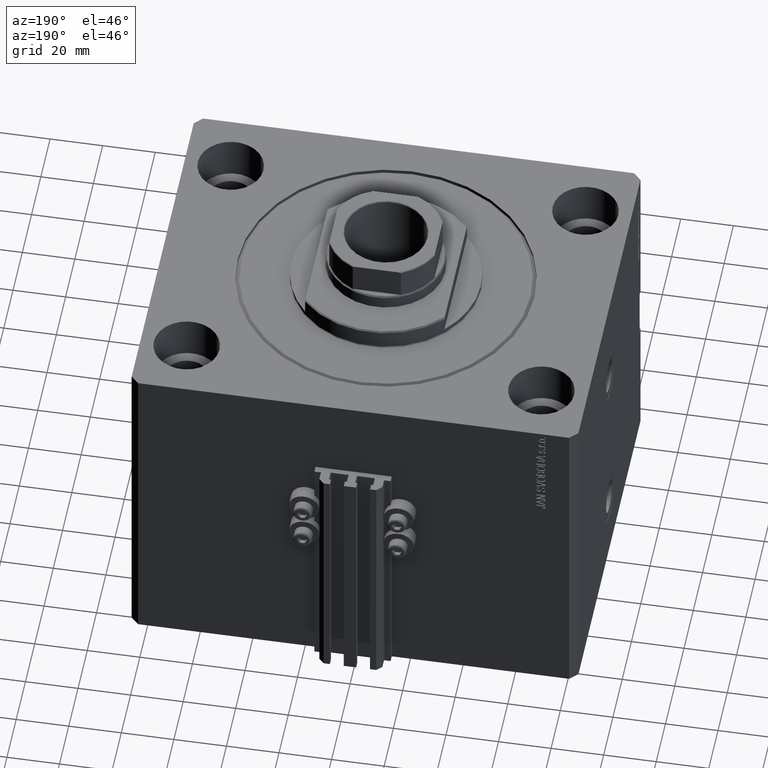
[diagram: clean part render]
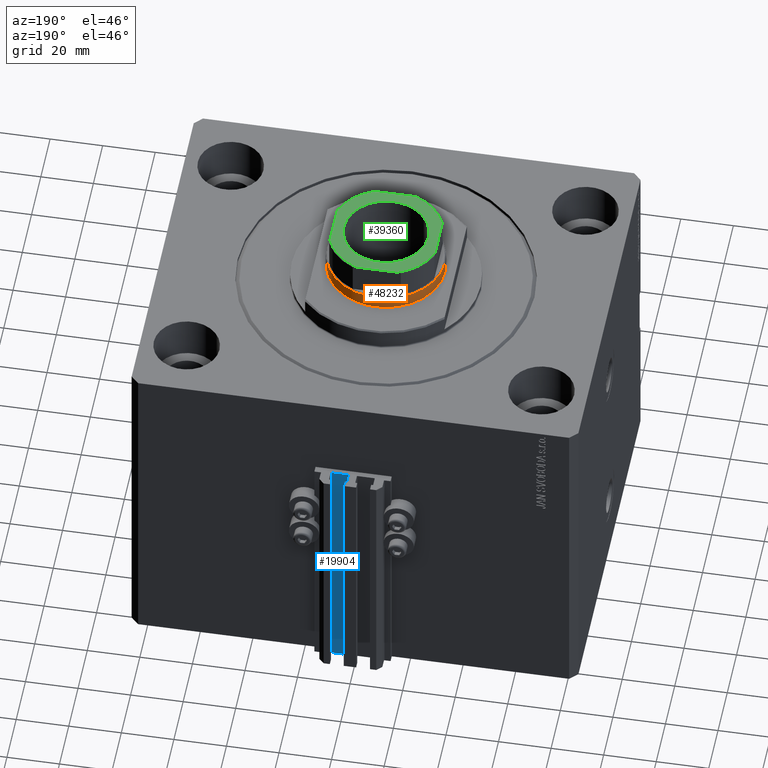
[diagram: same view with three faces highlighted in distinct colors, each labeled with its STEP entity id]
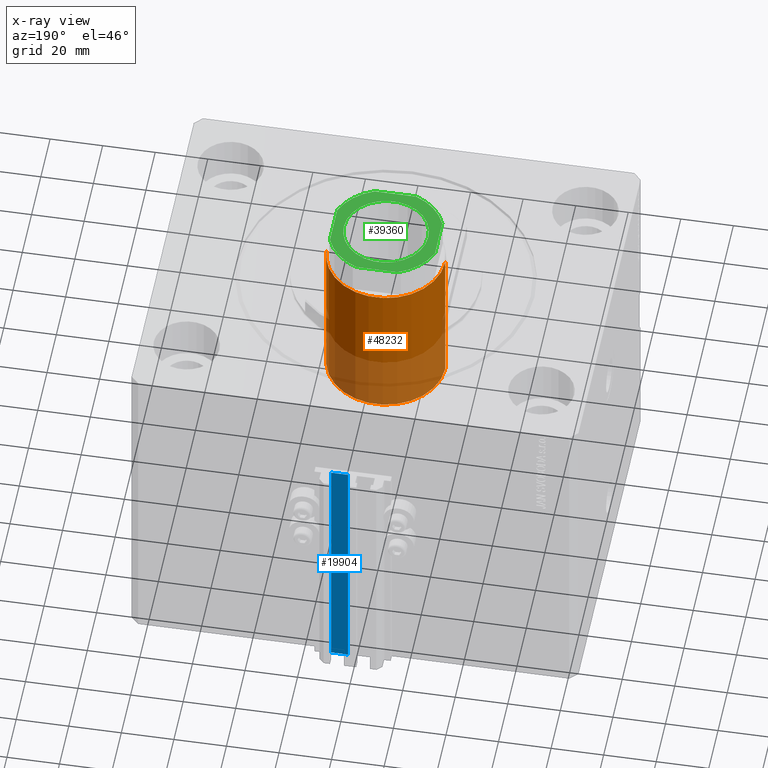
[diagram: x-ray of the same camera — body ghosted, the three highlighted faces saturated]
A machine part, auxiliary view with three faces highlighted in distinct colors.
The next image is the same camera in x-ray (body ghosted, the three faces saturated) — at least one of them is partly hidden behind the body in this view.
Their STEP definitions:

[orange] entity #48232 — the highlighted cylindrical surface (partial cylindrical patch) has radius 22.5 mm, axis along (-0, -0, -1).
#2390 = CARTESIAN_POINT ( 'NONE',  ( 0.000000000000000000, 0.000000000000000000, 114.1000000000000085 ) ) ;
#2541 = CARTESIAN_POINT ( 'NONE',  ( 22.50000000000000355, 2.755455298081544383E-15, 113.6000000000001222 ) ) ;
#3305 = EDGE_CURVE ( 'NONE', #17472, #37091, #46694, .T. ) ;
#5147 = DIRECTION ( 'NONE',  ( 1.000000000000000000, 0.000000000000000000, 0.000000000000000000 ) ) ;
#6538 = DIRECTION ( 'NONE',  ( 0.000000000000000000, 0.000000000000000000, -1.000000000000000000 ) ) ;
#6735 = CARTESIAN_POINT ( 'NONE',  ( -22.50000000000000355, 0.000000000000000000, 114.1000000000000085 ) ) ;
#7206 = LINE ( 'NONE', #6735, #37545 ) ;
#9996 = EDGE_LOOP ( 'NONE', ( #24044, #28781, #40655, #35609 ) ) ;
#12218 = VERTEX_POINT ( 'NONE', #42790 ) ;
#12947 = DIRECTION ( 'NONE',  ( -1.000000000000000000, 0.000000000000000000, 0.000000000000000000 ) ) ;
#13688 = AXIS2_PLACEMENT_3D ( 'NONE', #35682, #6538, #43510 ) ;
#13841 = DIRECTION ( 'NONE',  ( -0.000000000000000000, -0.000000000000000000, -1.000000000000000000 ) ) ;
#16099 = CIRCLE ( 'NONE', #22309, 22.50000000000000355 ) ;
#17174 = EDGE_CURVE ( 'NONE', #12218, #17472, #17565, .T. ) ;
#17472 = VERTEX_POINT ( 'NONE', #2541 ) ;
#17565 = CIRCLE ( 'NONE', #13688, 22.50000000000000355 ) ;
#22309 = AXIS2_PLACEMENT_3D ( 'NONE', #31839, #46053, #5147 ) ;
#22980 = EDGE_CURVE ( 'NONE', #37091, #34509, #16099, .T. ) ;
#24044 = ORIENTED_EDGE ( 'NONE', *, *, #17174, .T. ) ;
#24714 = AXIS2_PLACEMENT_3D ( 'NONE', #2390, #46487, #12947 ) ;
#28111 = FACE_OUTER_BOUND ( 'NONE', #9996, .T. ) ;
#28781 = ORIENTED_EDGE ( 'NONE', *, *, #3305, .T. ) ;
#28806 = CARTESIAN_POINT ( 'NONE',  ( 22.50000000000000355, 2.755455298081544383E-15, 114.1000000000000085 ) ) ;
#31839 = CARTESIAN_POINT ( 'NONE',  ( 0.000000000000000000, 0.000000000000000000, 56.10000000000000142 ) ) ;
#33778 = EDGE_CURVE ( 'NONE', #12218, #34509, #7206, .T. ) ;
#34509 = VERTEX_POINT ( 'NONE', #47137 ) ;
#35609 = ORIENTED_EDGE ( 'NONE', *, *, #33778, .F. ) ;
#35682 = CARTESIAN_POINT ( 'NONE',  ( 0.000000000000000000, 0.000000000000000000, 113.6000000000001222 ) ) ;
#35974 = CARTESIAN_POINT ( 'NONE',  ( 22.50000000000000355, 2.755455298081544383E-15, 56.10000000000000142 ) ) ;
#37091 = VERTEX_POINT ( 'NONE', #35974 ) ;
#37545 = VECTOR ( 'NONE', #13841, 1000.000000000000000 ) ;
#38898 = CYLINDRICAL_SURFACE ( 'NONE', #24714, 22.50000000000000355 ) ;
#40655 = ORIENTED_EDGE ( 'NONE', *, *, #22980, .T. ) ;
#42790 = CARTESIAN_POINT ( 'NONE',  ( -22.50000000000000355, 0.000000000000000000, 113.6000000000001222 ) ) ;
#43510 = DIRECTION ( 'NONE',  ( 1.000000000000000000, 0.000000000000000000, 0.000000000000000000 ) ) ;
#43741 = DIRECTION ( 'NONE',  ( -0.000000000000000000, -0.000000000000000000, -1.000000000000000000 ) ) ;
#46053 = DIRECTION ( 'NONE',  ( 0.000000000000000000, 0.000000000000000000, 1.000000000000000000 ) ) ;
#46487 = DIRECTION ( 'NONE',  ( -0.000000000000000000, -0.000000000000000000, -1.000000000000000000 ) ) ;
#46694 = LINE ( 'NONE', #28806, #46996 ) ;
#46996 = VECTOR ( 'NONE', #43741, 1000.000000000000000 ) ;
#47137 = CARTESIAN_POINT ( 'NONE',  ( -22.50000000000000355, 0.000000000000000000, 56.10000000000000142 ) ) ;
#48232 = ADVANCED_FACE ( 'NONE', ( #28111 ), #38898, .T. ) ;

[blue] entity #19904 — the highlighted planar face has unit normal (0, 1, 0).
#373 = DIRECTION ( 'NONE',  ( -1.000000000000000000, 0.000000000000000000, 0.000000000000000000 ) ) ;
#1296 = VERTEX_POINT ( 'NONE', #34065 ) ;
#1307 = ORIENTED_EDGE ( 'NONE', *, *, #21773, .F. ) ;
#2293 = EDGE_CURVE ( 'NONE', #42415, #23724, #43188, .T. ) ;
#4054 = LINE ( 'NONE', #19002, #40953 ) ;
#4790 = VERTEX_POINT ( 'NONE', #27479 ) ;
#5073 = VECTOR ( 'NONE', #18621, 1000.000000000000000 ) ;
#6889 = LINE ( 'NONE', #21813, #5073 ) ;
#7096 = EDGE_CURVE ( 'NONE', #4790, #23724, #47705, .T. ) ;
#7872 = ORIENTED_EDGE ( 'NONE', *, *, #14228, .T. ) ;
#9687 = DIRECTION ( 'NONE',  ( 0.000000000000000000, 1.000000000000000000, -0.000000000000000000 ) ) ;
#10420 = FACE_OUTER_BOUND ( 'NONE', #15469, .T. ) ;
#12357 = DIRECTION ( 'NONE',  ( 0.000000000000000000, 0.000000000000000000, 1.000000000000000000 ) ) ;
#14228 = EDGE_CURVE ( 'NONE', #1296, #42415, #4054, .T. ) ;
#15469 = EDGE_LOOP ( 'NONE', ( #31544, #1307, #7872, #19839 ) ) ;
#18621 = DIRECTION ( 'NONE',  ( 0.000000000000000000, 0.000000000000000000, 1.000000000000000000 ) ) ;
#19002 = CARTESIAN_POINT ( 'NONE',  ( 8.199999999999999289, 72.00000000000001421, -130.0000000000000000 ) ) ;
#19839 = ORIENTED_EDGE ( 'NONE', *, *, #2293, .T. ) ;
#19904 = ADVANCED_FACE ( 'NONE', ( #10420 ), #32213, .T. ) ;
#21773 = EDGE_CURVE ( 'NONE', #1296, #4790, #6889, .T. ) ;
#21813 = CARTESIAN_POINT ( 'NONE',  ( 8.199999999999999289, 72.00000000000001421, -130.0000000000000000 ) ) ;
#23724 = VERTEX_POINT ( 'NONE', #38943 ) ;
#24606 = DIRECTION ( 'NONE',  ( 0.000000000000000000, 0.000000000000000000, 1.000000000000000000 ) ) ;
#25099 = CARTESIAN_POINT ( 'NONE',  ( 8.199999999999999289, 72.00000000000001421, -130.0000000000000000 ) ) ;
#25884 = DIRECTION ( 'NONE',  ( -1.000000000000000000, 0.000000000000000000, 0.000000000000000000 ) ) ;
#27479 = CARTESIAN_POINT ( 'NONE',  ( 8.199999999999999289, 72.00000000000001421, -33.00000000000000000 ) ) ;
#31544 = ORIENTED_EDGE ( 'NONE', *, *, #7096, .F. ) ;
#32213 = PLANE ( 'NONE',  #38765 ) ;
#33828 = VECTOR ( 'NONE', #25884, 1000.000000000000000 ) ;
#34065 = CARTESIAN_POINT ( 'NONE',  ( 8.199999999999999289, 72.00000000000001421, -130.0000000000000000 ) ) ;
#38765 = AXIS2_PLACEMENT_3D ( 'NONE', #25099, #9687, #24606 ) ;
#38943 = CARTESIAN_POINT ( 'NONE',  ( 1.800000000000000933, 72.00000000000001421, -33.00000000000000000 ) ) ;
#40317 = CARTESIAN_POINT ( 'NONE',  ( 1.800000000000000933, 72.00000000000001421, -130.0000000000000000 ) ) ;
#40953 = VECTOR ( 'NONE', #373, 1000.000000000000000 ) ;
#42415 = VERTEX_POINT ( 'NONE', #40317 ) ;
#42714 = CARTESIAN_POINT ( 'NONE',  ( 1.800000000000000933, 72.00000000000001421, -130.0000000000000000 ) ) ;
#43188 = LINE ( 'NONE', #42714, #46192 ) ;
#46192 = VECTOR ( 'NONE', #12357, 1000.000000000000000 ) ;
#47463 = CARTESIAN_POINT ( 'NONE',  ( 8.199999999999999289, 72.00000000000001421, -33.00000000000000000 ) ) ;
#47705 = LINE ( 'NONE', #47463, #33828 ) ;

[green] entity #39360 — the highlighted planar face has unit normal (0, 0, 1).
#218 = DIRECTION ( 'NONE',  ( -0.000000000000000000, 0.000000000000000000, 1.000000000000000000 ) ) ;
#457 = CARTESIAN_POINT ( 'NONE',  ( 0.000000000000000000, 0.000000000000000000, 126.1000000000000227 ) ) ;
#499 = LINE ( 'NONE', #19843, #12939 ) ;
#682 = EDGE_CURVE ( 'NONE', #30886, #23936, #4665, .T. ) ;
#1172 = DIRECTION ( 'NONE',  ( 1.000000000000000000, 0.000000000000000000, 0.000000000000000000 ) ) ;
#1969 = VERTEX_POINT ( 'NONE', #22909 ) ;
#2169 = CARTESIAN_POINT ( 'NONE',  ( 0.000000000000000000, 0.000000000000000000, 126.1000000000000227 ) ) ;
#2974 = ORIENTED_EDGE ( 'NONE', *, *, #682, .T. ) ;
#3147 = CARTESIAN_POINT ( 'NONE',  ( 20.00000000000000000, 7.889866919029748793, 126.1000000000000227 ) ) ;
#4056 = DIRECTION ( 'NONE',  ( 1.000000000000000000, 0.000000000000000000, 0.000000000000000000 ) ) ;
#4665 = CIRCLE ( 'NONE', #16415, 16.04999999999997939 ) ;
#5444 = CARTESIAN_POINT ( 'NONE',  ( -20.00000000000000355, 20.00000000000000000, 126.1000000000000227 ) ) ;
#5837 = FACE_OUTER_BOUND ( 'NONE', #46431, .T. ) ;
#6076 = CARTESIAN_POINT ( 'NONE',  ( 7.889866919029743464, 20.00000000000000000, 126.1000000000000227 ) ) ;
#6793 = EDGE_LOOP ( 'NONE', ( #2974, #29212 ) ) ;
#6821 = LINE ( 'NONE', #21252, #34103 ) ;
#7468 = CARTESIAN_POINT ( 'NONE',  ( 16.04999999999997939, 0.000000000000000000, 126.1000000000000227 ) ) ;
#7990 = CARTESIAN_POINT ( 'NONE',  ( 0.000000000000000000, 0.000000000000000000, 126.1000000000000227 ) ) ;
#8499 = AXIS2_PLACEMENT_3D ( 'NONE', #32679, #47615, #29003 ) ;
#8568 = AXIS2_PLACEMENT_3D ( 'NONE', #457, #218, #40894 ) ;
#9023 = ORIENTED_EDGE ( 'NONE', *, *, #34402, .T. ) ;
#9199 = EDGE_CURVE ( 'NONE', #22603, #46762, #27617, .T. ) ;
#9725 = VERTEX_POINT ( 'NONE', #28522 ) ;
#9744 = ORIENTED_EDGE ( 'NONE', *, *, #20552, .T. ) ;
#10005 = DIRECTION ( 'NONE',  ( -1.000000000000000000, -0.000000000000000000, -0.000000000000000000 ) ) ;
#10873 = VECTOR ( 'NONE', #36972, 1000.000000000000000 ) ;
#12031 = VECTOR ( 'NONE', #34853, 1000.000000000000000 ) ;
#12478 = CIRCLE ( 'NONE', #8568, 21.50000000000000000 ) ;
#12939 = VECTOR ( 'NONE', #19368, 1000.000000000000000 ) ;
#13168 = ORIENTED_EDGE ( 'NONE', *, *, #9199, .T. ) ;
#13447 = EDGE_CURVE ( 'NONE', #46235, #24141, #24460, .T. ) ;
#14007 = ORIENTED_EDGE ( 'NONE', *, *, #15542, .T. ) ;
#14296 = CARTESIAN_POINT ( 'NONE',  ( 20.00000000000000000, -7.889866919029739911, 126.1000000000000227 ) ) ;
#14932 = CARTESIAN_POINT ( 'NONE',  ( -20.00000000000000000, -20.00000000000000000, 126.1000000000000227 ) ) ;
#15542 = EDGE_CURVE ( 'NONE', #46762, #1969, #16964, .T. ) ;
#16415 = AXIS2_PLACEMENT_3D ( 'NONE', #2169, #24699, #17618 ) ;
#16788 = AXIS2_PLACEMENT_3D ( 'NONE', #36870, #30239, #22406 ) ;
#16964 = LINE ( 'NONE', #5444, #12031 ) ;
#17351 = DIRECTION ( 'NONE',  ( -0.000000000000000000, 0.000000000000000000, 1.000000000000000000 ) ) ;
#17618 = DIRECTION ( 'NONE',  ( 1.000000000000000000, 0.000000000000000000, 0.000000000000000000 ) ) ;
#18994 = AXIS2_PLACEMENT_3D ( 'NONE', #7990, #38095, #4056 ) ;
#19368 = DIRECTION ( 'NONE',  ( -1.734723475976807094E-16, 1.000000000000000000, -0.000000000000000000 ) ) ;
#19843 = CARTESIAN_POINT ( 'NONE',  ( 19.99999999999999645, 20.00000000000000000, 126.1000000000000227 ) ) ;
#20524 = CARTESIAN_POINT ( 'NONE',  ( 0.000000000000000000, 0.000000000000000000, 126.1000000000000227 ) ) ;
#20552 = EDGE_CURVE ( 'NONE', #24141, #22603, #6821, .T. ) ;
#21038 = EDGE_CURVE ( 'NONE', #23936, #30886, #48191, .T. ) ;
#21252 = CARTESIAN_POINT ( 'NONE',  ( -20.00000000000000355, 20.00000000000000000, 126.1000000000000227 ) ) ;
#22406 = DIRECTION ( 'NONE',  ( 1.000000000000000000, 0.000000000000000000, 0.000000000000000000 ) ) ;
#22603 = VERTEX_POINT ( 'NONE', #33104 ) ;
#22728 = EDGE_CURVE ( 'NONE', #39971, #46235, #499, .T. ) ;
#22736 = ORIENTED_EDGE ( 'NONE', *, *, #13447, .T. ) ;
#22909 = CARTESIAN_POINT ( 'NONE',  ( -20.00000000000000355, -7.889866919029736358, 126.1000000000000227 ) ) ;
#23936 = VERTEX_POINT ( 'NONE', #42101 ) ;
#24141 = VERTEX_POINT ( 'NONE', #6076 ) ;
#24460 = CIRCLE ( 'NONE', #18994, 21.50000000000000000 ) ;
#24684 = FACE_BOUND ( 'NONE', #6793, .T. ) ;
#24699 = DIRECTION ( 'NONE',  ( 0.000000000000000000, -0.000000000000000000, -1.000000000000000000 ) ) ;
#25148 = ORIENTED_EDGE ( 'NONE', *, *, #22728, .T. ) ;
#27617 = CIRCLE ( 'NONE', #37794, 21.50000000000000000 ) ;
#28364 = PLANE ( 'NONE',  #44643 ) ;
#28522 = CARTESIAN_POINT ( 'NONE',  ( 7.889866919029745240, -20.00000000000000000, 126.1000000000000227 ) ) ;
#29003 = DIRECTION ( 'NONE',  ( 1.000000000000000000, 0.000000000000000000, 0.000000000000000000 ) ) ;
#29212 = ORIENTED_EDGE ( 'NONE', *, *, #21038, .T. ) ;
#29608 = CIRCLE ( 'NONE', #8499, 21.50000000000000000 ) ;
#30239 = DIRECTION ( 'NONE',  ( 0.000000000000000000, -0.000000000000000000, -1.000000000000000000 ) ) ;
#30622 = EDGE_CURVE ( 'NONE', #9725, #39971, #29608, .T. ) ;
#30821 = CARTESIAN_POINT ( 'NONE',  ( 0.000000000000000000, 0.000000000000000000, 126.1000000000000227 ) ) ;
#30886 = VERTEX_POINT ( 'NONE', #7468 ) ;
#31626 = CARTESIAN_POINT ( 'NONE',  ( -7.889866919029745240, -20.00000000000000000, 126.1000000000000227 ) ) ;
#32679 = CARTESIAN_POINT ( 'NONE',  ( 0.000000000000000000, 0.000000000000000000, 126.1000000000000227 ) ) ;
#33104 = CARTESIAN_POINT ( 'NONE',  ( -7.889866919029745240, 20.00000000000000000, 126.1000000000000227 ) ) ;
#34103 = VECTOR ( 'NONE', #10005, 1000.000000000000000 ) ;
#34402 = EDGE_CURVE ( 'NONE', #36628, #9725, #48471, .T. ) ;
#34737 = DIRECTION ( 'NONE',  ( -0.000000000000000000, 0.000000000000000000, 1.000000000000000000 ) ) ;
#34853 = DIRECTION ( 'NONE',  ( 8.673617379884035472E-17, -1.000000000000000000, 0.000000000000000000 ) ) ;
#35342 = EDGE_CURVE ( 'NONE', #1969, #36628, #12478, .T. ) ;
#36464 = ORIENTED_EDGE ( 'NONE', *, *, #35342, .T. ) ;
#36628 = VERTEX_POINT ( 'NONE', #31626 ) ;
#36870 = CARTESIAN_POINT ( 'NONE',  ( 0.000000000000000000, 0.000000000000000000, 126.1000000000000227 ) ) ;
#36972 = DIRECTION ( 'NONE',  ( 1.000000000000000000, 0.000000000000000000, 0.000000000000000000 ) ) ;
#37794 = AXIS2_PLACEMENT_3D ( 'NONE', #30821, #34737, #1172 ) ;
#38095 = DIRECTION ( 'NONE',  ( -0.000000000000000000, 0.000000000000000000, 1.000000000000000000 ) ) ;
#38660 = DIRECTION ( 'NONE',  ( 1.000000000000000000, 0.000000000000000000, 0.000000000000000000 ) ) ;
#39360 = ADVANCED_FACE ( 'NONE', ( #24684, #5837 ), #28364, .T. ) ;
#39971 = VERTEX_POINT ( 'NONE', #14296 ) ;
#40894 = DIRECTION ( 'NONE',  ( 1.000000000000000000, 0.000000000000000000, 0.000000000000000000 ) ) ;
#41244 = CARTESIAN_POINT ( 'NONE',  ( -20.00000000000000355, 7.889866919029741688, 126.1000000000000227 ) ) ;
#42101 = CARTESIAN_POINT ( 'NONE',  ( -16.04999999999997939, 1.965558112631499443E-15, 126.1000000000000227 ) ) ;
#43854 = ORIENTED_EDGE ( 'NONE', *, *, #30622, .T. ) ;
#44643 = AXIS2_PLACEMENT_3D ( 'NONE', #20524, #17351, #38660 ) ;
#46235 = VERTEX_POINT ( 'NONE', #3147 ) ;
#46431 = EDGE_LOOP ( 'NONE', ( #14007, #36464, #9023, #43854, #25148, #22736, #9744, #13168 ) ) ;
#46762 = VERTEX_POINT ( 'NONE', #41244 ) ;
#47615 = DIRECTION ( 'NONE',  ( -0.000000000000000000, 0.000000000000000000, 1.000000000000000000 ) ) ;
#48191 = CIRCLE ( 'NONE', #16788, 16.04999999999997939 ) ;
#48471 = LINE ( 'NONE', #14932, #10873 ) ;